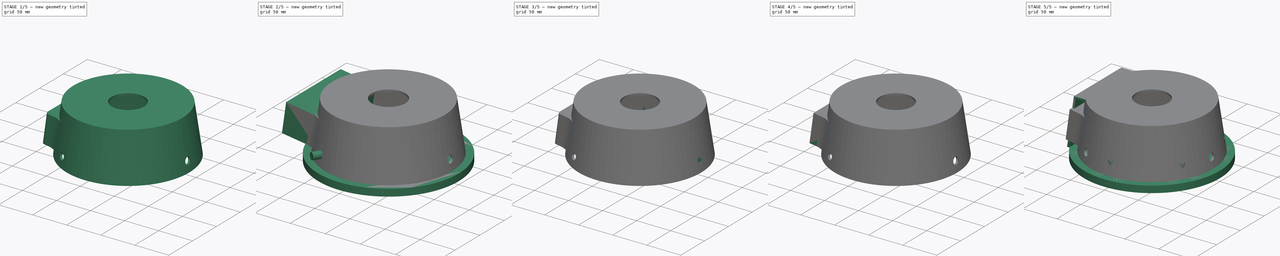
[diagram: build sequence overview — one tinted view per stage of 5, left to right]
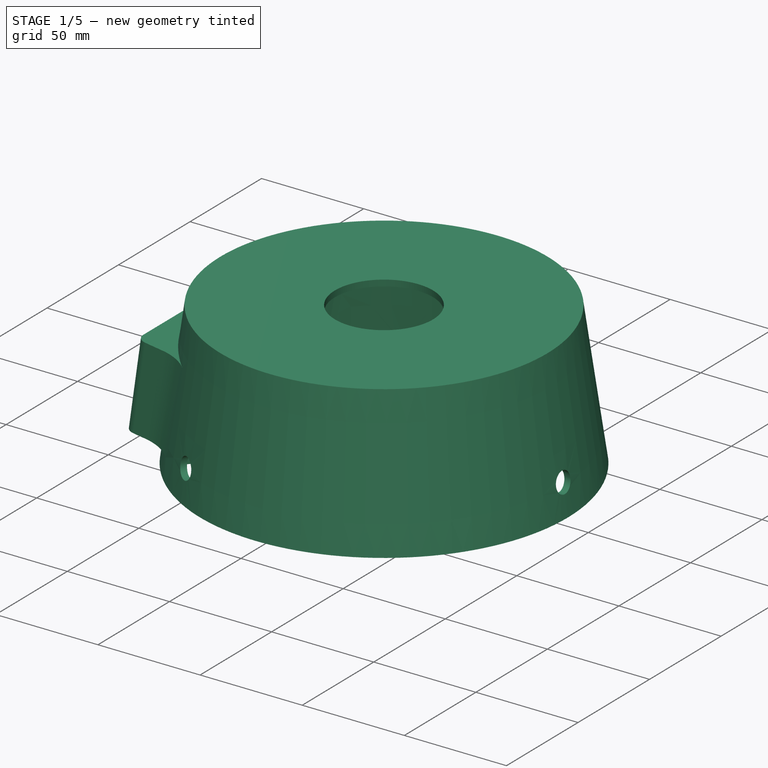
[diagram: stage 1 of 5 — iso view after this stage's code; geometry added in this stage tinted green]
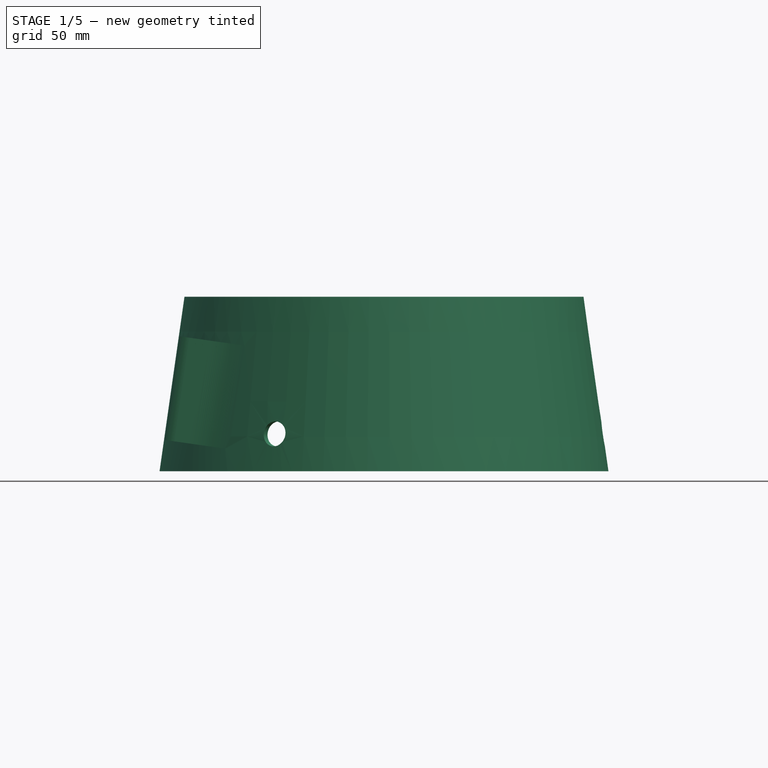
[diagram: stage 1 of 5 — front view after this stage's code; geometry added in this stage tinted green]
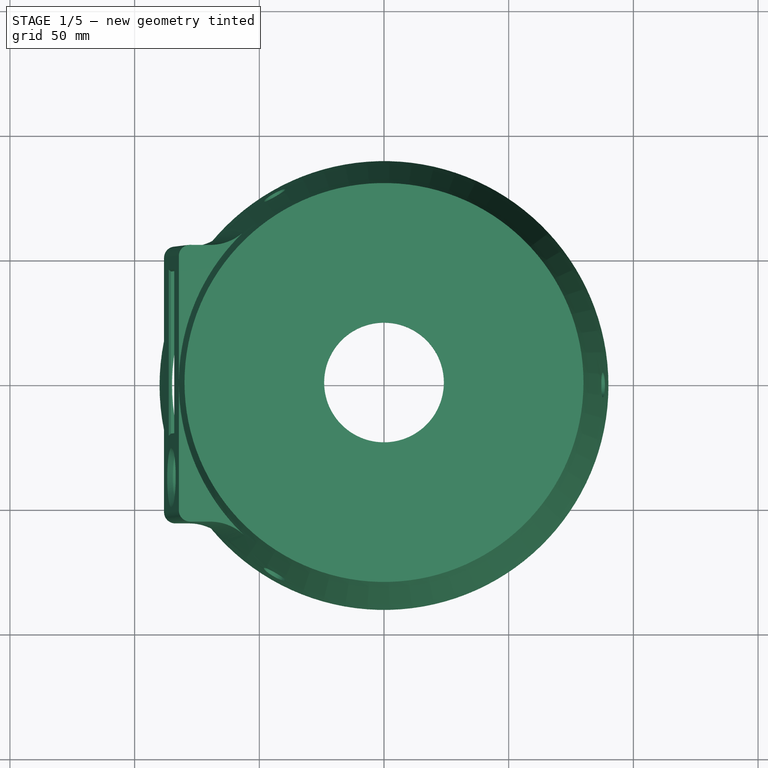
[diagram: stage 1 of 5 — top view after this stage's code; geometry added in this stage tinted green]
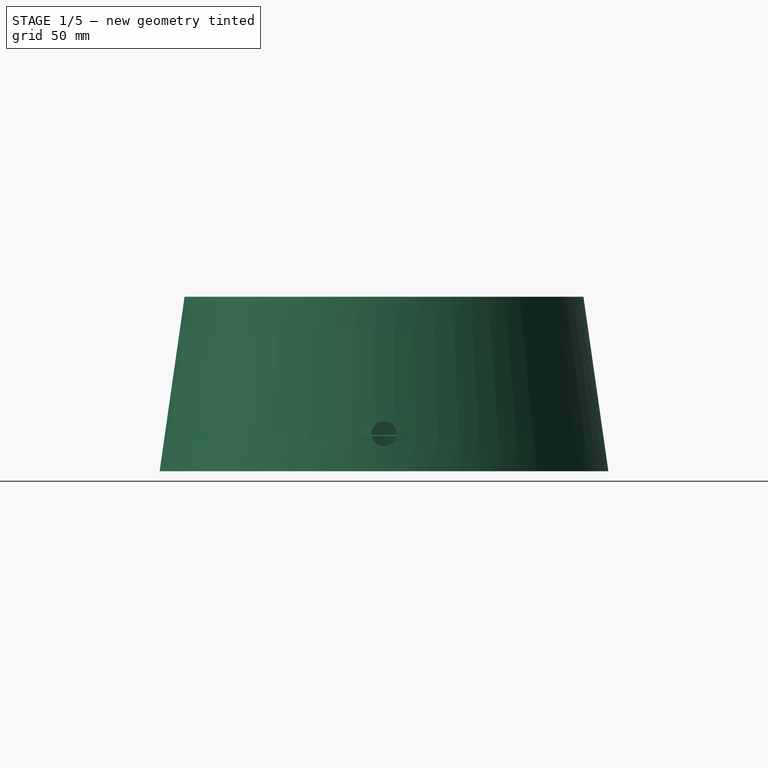
[diagram: stage 1 of 5 — right view after this stage's code; geometry added in this stage tinted green]
FCSTD DOCUMENT  (FreeCAD 0.16R6707 (Git))
Label: lid
License: All rights reserved
LicenseURL: http://en.wikipedia.org/wiki/All_rights_reserved
objects: Sketcher::SketchObject×19, PartDesign::Pad×11, PartDesign::Chamfer×8, PartDesign::Pocket×6, Part::Cut×5, PartDesign::Fillet×5, Part::Feature×4, PartDesign::Revolution×2, Part::MultiFuse×2
note: 81 computed .brp shape members not serialized (recipe doc carries the construction recipe); baked Part::Feature solids carry a one-line shape summary decoded from their .brp

FEATURE [Part::Feature] Fusion001_solid  label="Final_PreRefine (Solid)"
  shape: bbox 180 x 180 x 70 mm, 124 faces (baked)
FEATURE [Part::Feature] Fusion001_solid001  label="Final_Refined"
  shape: bbox 180 x 180 x 70 mm, 120 faces (baked)
FEATURE [PartDesign::Chamfer] Chamfer  label="Chamfer_Around_The_Display"
  Base = -> Fusion001_solid001 [Edge12,Edge1,Edge11,Edge13]
  Size = 0.8
FEATURE [PartDesign::Chamfer] Chamfer001  label="Chamfer_Around_The_Encoder_Well"
  Base = -> Chamfer [Edge40]
  Size = 2
FEATURE [PartDesign::Fillet] Fillet
  Base = -> Chamfer001 [Edge23,Edge31]
  Radius = 20
FEATURE [PartDesign::Fillet] Fillet001
  Base = -> Fillet [Edge3,Edge19]
  Radius = 4.5
FEATURE [PartDesign::Fillet] Fillet002
  Base = -> Fillet001 [Edge158,Edge151]
  Radius = 3
FEATURE [PartDesign::Fillet] Fillet003
  Base = -> Fillet002 [Edge158]
  Radius = 5
FEATURE [PartDesign::Fillet] Fillet004
  Base = -> Fillet003 [Edge24,Edge28,Edge36,Edge32,Edge33,Edge29,Edge25,Edge21,Edge17,Edge13,Edge16,Edge20]
  Radius = 4.5
FEATURE [PartDesign::Chamfer] Chamfer002
  Base = -> Fillet004 [Edge121,Edge123,Edge124,Edge143,Edge146,Edge147]
  Size = 1.4
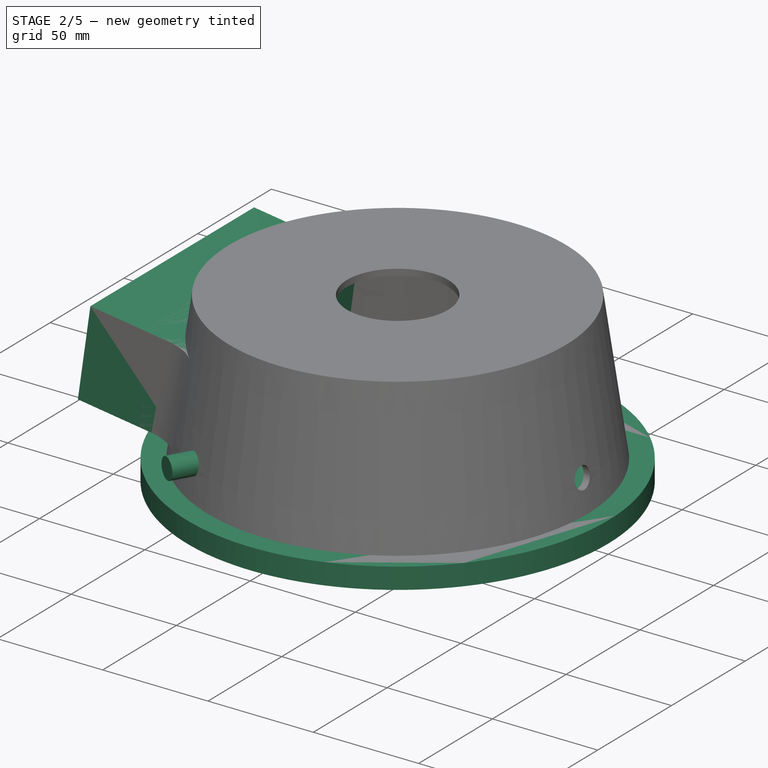
[diagram: stage 2 of 5 — iso view after this stage's code; geometry added in this stage tinted green]
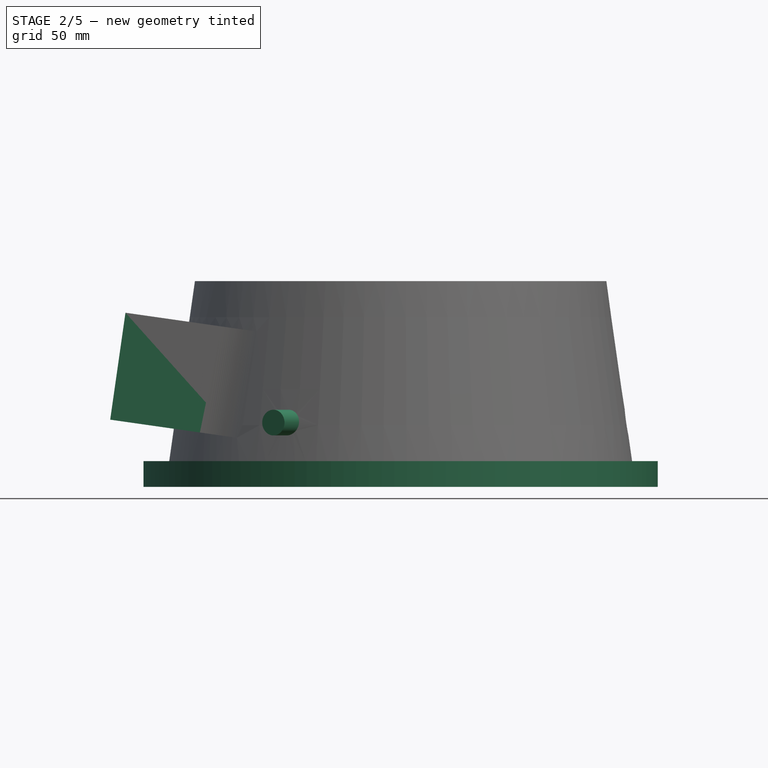
[diagram: stage 2 of 5 — front view after this stage's code; geometry added in this stage tinted green]
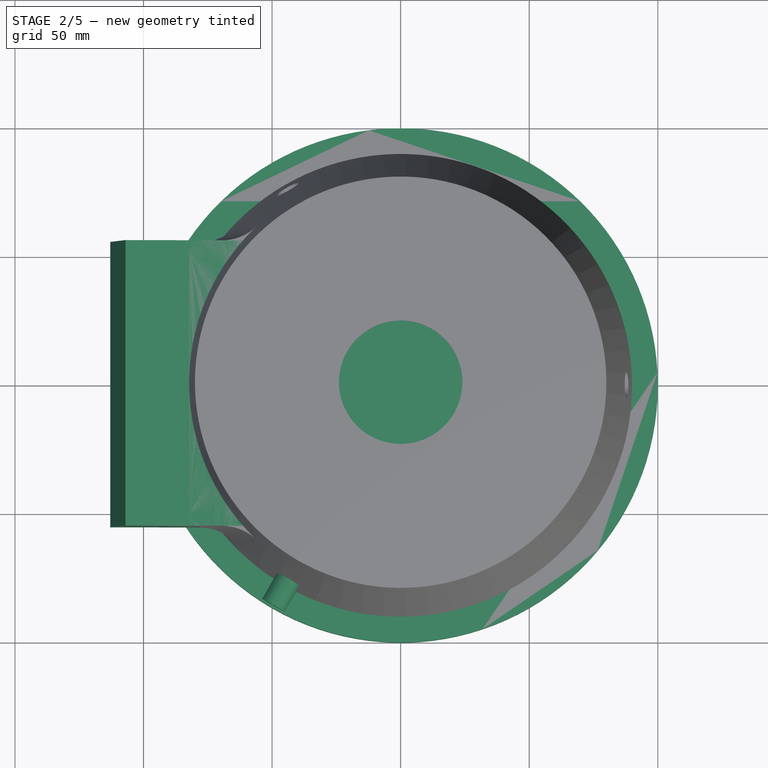
[diagram: stage 2 of 5 — top view after this stage's code; geometry added in this stage tinted green]
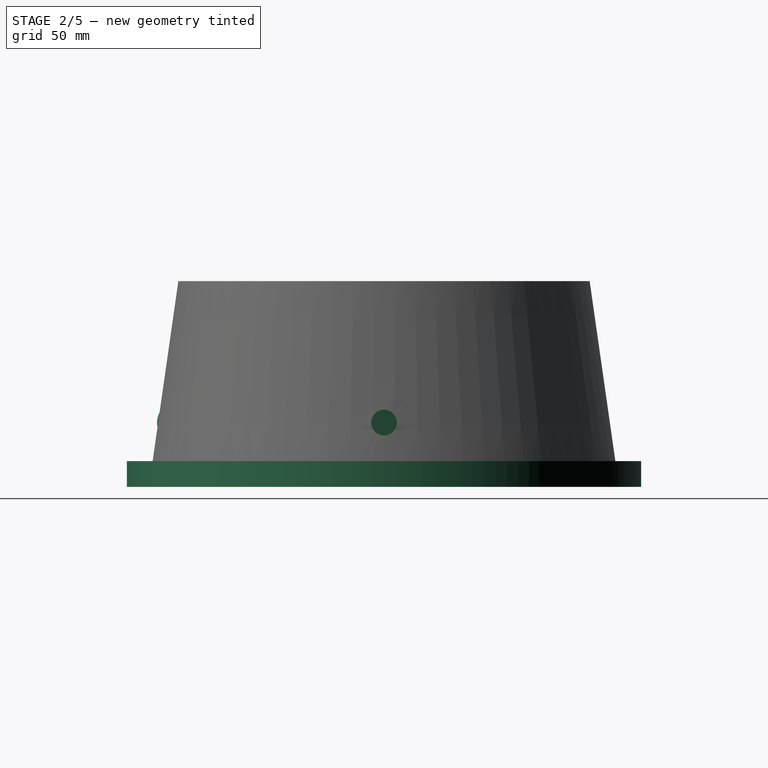
[diagram: stage 2 of 5 — right view after this stage's code; geometry added in this stage tinted green]
FEATURE [Sketcher::SketchObject] Sketch018  label="leg_base"
  sketch-geometry (1):
    g0: Circle CenterX=0 CenterY=0 CenterZ=0 NormalX=0 NormalY=0 NormalZ=1 Radius=100
  constraints (2):
    c: Coincident(g0,g-1)
    c: Radius(g0) = 100
FEATURE [PartDesign::Pad] Pad004
  Length = 10
  Length2 = 100
  Reversed = true
  Sketch = -> Sketch018
  Type = 0
FEATURE [Sketcher::SketchObject] Sketch020  label="Display_cutout"
  Placement = pos=(-88.2,0,12.6) rot=(-0.655202,0,0.755454;3.14159rad)
  sketch-geometry (6):
    g0: LineSegment StartX=-42 StartY=55.5 StartZ=0 EndX=0 EndY=55.5 EndZ=0
    g1: LineSegment StartX=0 StartY=55.5 StartZ=0 EndX=0 EndY=-55.5 EndZ=0
    g2: LineSegment StartX=0 StartY=-55.5 StartZ=0 EndX=-42 EndY=-55.5 EndZ=0
    g3: LineSegment StartX=-42 StartY=-55.5 StartZ=0 EndX=-42 EndY=55.5 EndZ=0
    g4: LineSegment [constr] StartX=-21 StartY=75 StartZ=0 EndX=-21 EndY=-75 EndZ=0
    g5: LineSegment [constr] StartX=-51 StartY=-12.75 StartZ=0 EndX=9 EndY=-12.75 EndZ=0
  constraints (18):
    c: Coincident(g0,g1)
    c: Coincident(g1,g2)
    c: Coincident(g2,g3)
    c: Coincident(g3,g0)
    c: Horizontal(g0)
    c: Horizontal(g2)
    c: Vertical(g1)
    c: Vertical(g3)
    c: Symmetric(g0,g2,g-1)
    c: DistanceY(g2,g0) = 111
    c: DistanceX(g2,g1) = 42
    c: PointOnObject(g0,g-2)
    c: DistanceX(g4,g1) = 21
    c: Symmetric(g4,g4,g-1)
    c: DistanceY(g4,g4) = 150
    c: Symmetric(g5,g5,g4)
    c: DistanceX(g5,g5) = 60
    c: DistanceY(g5,g-1) = 12.75
FEATURE [PartDesign::Pad] Pad006
  Length = 50
  Length2 = 100
  Midplane = true
  Placement = pos=(-88.2,0,12.6) rot=(-0.655202,0,0.755454;3.14159rad)
  Sketch = -> Sketch020
  Type = 0
FEATURE [Sketcher::SketchObject] Sketch023  label="power_plug_hole_left"
  Placement = pos=(-24.5,-42.4352,0) rot=(0.935113,-0.250563,-0.250563;1.63783rad)
  sketch-geometry (1):
    g0: Circle CenterX=0 CenterY=15 CenterZ=0 NormalX=0 NormalY=0 NormalZ=1 Radius=5
  constraints (3):
    c: PointOnObject(g0,g-2)
    c: DistanceY(g-1,g0) = 15
    c: Radius(g0) = 5
FEATURE [PartDesign::Pad] Pad008  label="Power_Plug_Hole_Left"
  Length = 50
  Length2 = 100
  Placement = pos=(-24.5,-42.4352,0) rot=(0.935113,-0.250563,-0.250563;1.63783rad)
  Sketch = -> Sketch023
  Type = 0
FEATURE [PartDesign::Chamfer] Chamfer003
  Base = -> Chamfer002 [Edge4,Edge6,Edge8,Edge20,Edge22,Edge24]
  Size = 2.5
FEATURE [PartDesign::Chamfer] Chamfer004
  Base = -> Chamfer003 [Edge134,Edge146,Edge144,Edge145,Edge155,Edge157,Edge158,Edge159]
  Size = 2
FEATURE [PartDesign::Chamfer] Chamfer005
  Base = -> Chamfer004 [Edge50,Edge48,Edge46,Edge8,Edge6,Edge4]
  Size = 1.5
FEATURE [PartDesign::Chamfer] Chamfer006
  Base = -> Chamfer005 [Edge424]
  Size = 3
FEATURE [PartDesign::Chamfer] Chamfer007
  Base = -> Chamfer006 [Edge10,Edge5]
  Size = 1.4
FEATURE [Part::Feature] Chamfer007_solid  label="Chamfer007 (Solid)"
  shape: bbox 183.3 x 180 x 73.68 mm, 177 faces (baked)
FEATURE [Part::Feature] Chamfer007_solid001  label="Final_Relined"
  shape: bbox 183.3 x 180 x 73.68 mm, 177 faces (baked)
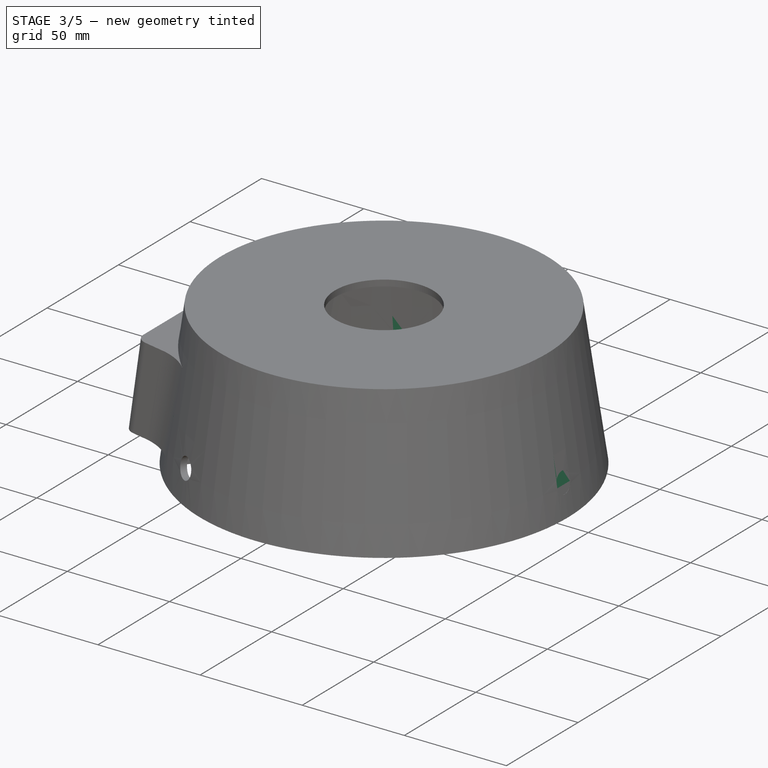
[diagram: stage 3 of 5 — iso view after this stage's code; geometry added in this stage tinted green]
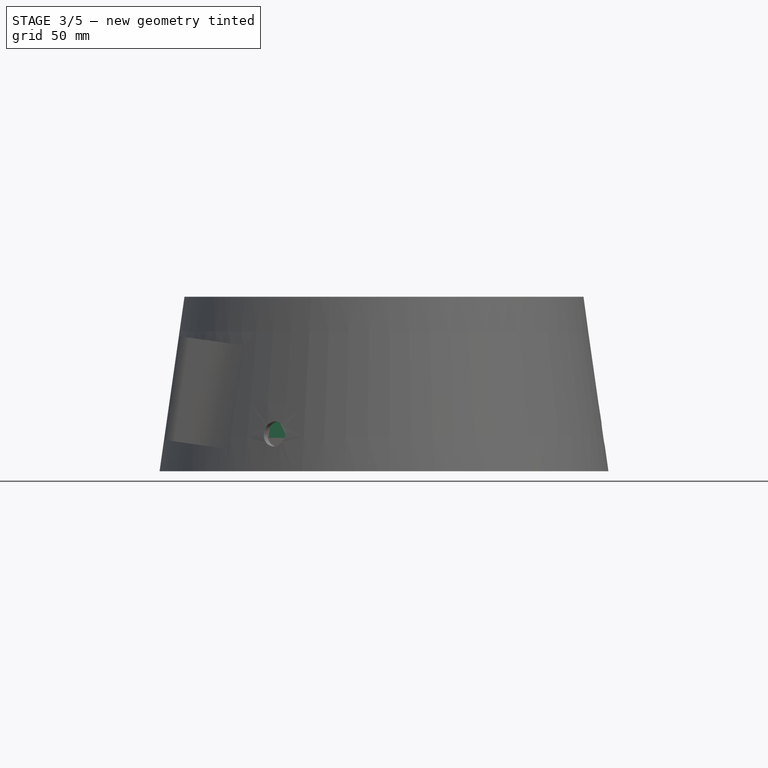
[diagram: stage 3 of 5 — front view after this stage's code; geometry added in this stage tinted green]
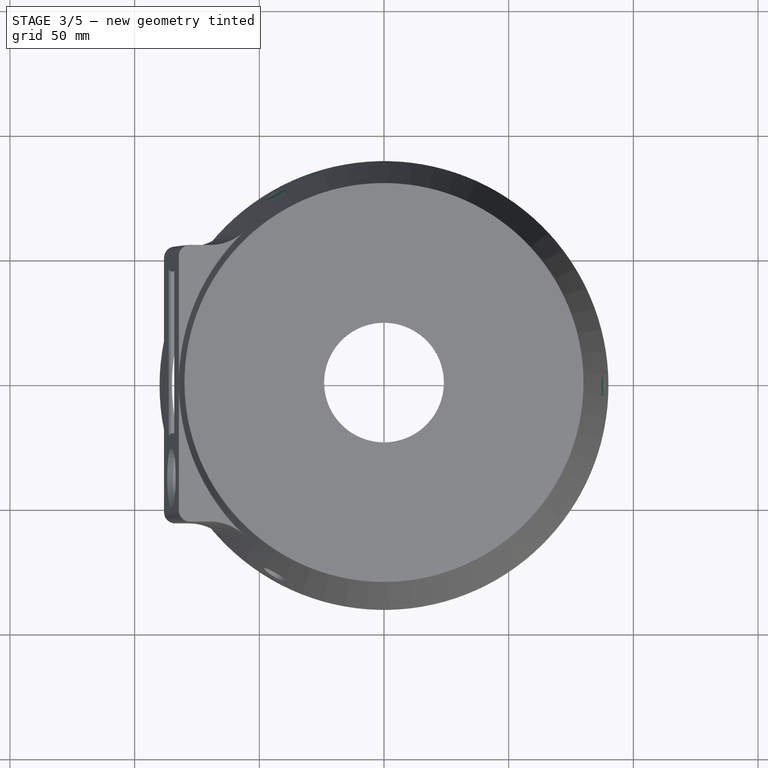
[diagram: stage 3 of 5 — top view after this stage's code; geometry added in this stage tinted green]
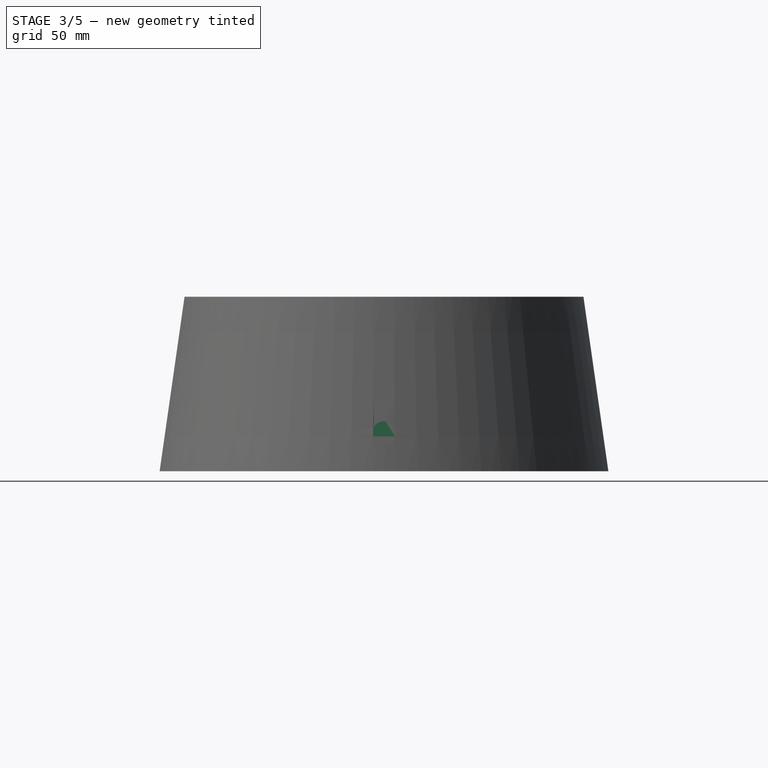
[diagram: stage 3 of 5 — right view after this stage's code; geometry added in this stage tinted green]
FEATURE [Sketcher::SketchObject] Sketch  label="Body"
  Placement = pos=(0,0,0) rot=(1,0,0;1.5708rad)
  sketch-geometry (7):
    g0: LineSegment StartX=-80 StartY=70 StartZ=0 EndX=-90 EndY=-9.176e-09 EndZ=0
    g1: LineSegment StartX=-90 StartY=-9.176e-09 StartZ=0 EndX=-87 EndY=9.588e-09 EndZ=0
    g2: LineSegment StartX=-87 StartY=9.588e-09 StartZ=0 EndX=-77.4286 EndY=67 EndZ=0
    g3: LineSegment StartX=-77.4286 StartY=67 StartZ=0 EndX=-24 EndY=67 EndZ=0
    g4: LineSegment StartX=-24 StartY=67 StartZ=0 EndX=-24 EndY=70 EndZ=0
    g5: LineSegment StartX=-80 StartY=70 StartZ=0 EndX=-80 EndY=70 EndZ=0
    g6: LineSegment StartX=-80 StartY=70 StartZ=0 EndX=-24 EndY=70 EndZ=0
  constraints (21):
    c: PointOnObject(g0,g-1)
    c: Coincident(g0,g1)
    c: PointOnObject(g1,g-1)
    c: Coincident(g1,g2)
    c: Coincident(g2,g3)
    c: Horizontal(g3)
    c: Coincident(g3,g4)
    c: DistanceX(g0,g-1) = 90
    c: DistanceX(g0,g-1) = 80
    c: DistanceX(g0,g1) = 3
    c: Parallel(g0,g2)
    c: DistanceY(g2,g0) = 3
    c: Vertical(g4)
    c: DistanceX(g3,g-1) = 24
    c: Vertical(g5)
    c: Coincident(g5,g6)
    c: Horizontal(g6)
    c: Coincident(g6,g4)
    c: Equal(g1,g4)
    c: DistanceY(g-1,g4) = 70
    c: Coincident(g5,g0)
FEATURE [PartDesign::Revolution] Revolution
  Angle = 360
  Axis = (0,0,1)
  Base = (0,0,0)
  Placement = pos=(0,0,0) rot=(1,0,0;1.5708rad)
  ReferenceAxis = -> Sketch [V_Axis]
  Sketch = -> Sketch
FEATURE [Sketcher::SketchObject] Sketch015  label="Screws"
  Support = -> Pad004 [Face2]
  sketch-geometry (19):
    g0: LineSegment [constr] StartX=69.282 StartY=-40 StartZ=0 EndX=69.282 EndY=40 EndZ=0
    g1: LineSegment [constr] StartX=69.282 StartY=40 StartZ=0 EndX=0 EndY=80 EndZ=0
    g2: LineSegment [constr] StartX=0 StartY=80 StartZ=0 EndX=-69.282 EndY=40 EndZ=0
    g3: LineSegment [constr] StartX=-69.282 StartY=40 StartZ=0 EndX=-69.282 EndY=-40 EndZ=0
    g4: LineSegment [constr] StartX=-69.282 StartY=-40 StartZ=0 EndX=0 EndY=-80 EndZ=0
    g5: LineSegment [constr] StartX=0 StartY=-80 StartZ=0 EndX=69.282 EndY=-40 EndZ=0
    g6: Circle [constr] CenterX=0 CenterY=0 CenterZ=0 NormalX=0 NormalY=0 NormalZ=1 Radius=80
    g7: Circle CenterX=-69.282 CenterY=40 CenterZ=0 NormalX=0 NormalY=0 NormalZ=1 Radius=1.6
    g8: Circle CenterX=-69.282 CenterY=40 CenterZ=0 NormalX=0 NormalY=0 NormalZ=1 Radius=8
    g9: Circle CenterX=0 CenterY=80 CenterZ=0 NormalX=0 NormalY=0 NormalZ=1 Radius=1.6
    g10: Circle CenterX=0 CenterY=80 CenterZ=0 NormalX=0 NormalY=0 NormalZ=1 Radius=8
    g11: Circle CenterX=69.282 CenterY=40 CenterZ=0 NormalX=0 NormalY=0 NormalZ=1 Radius=1.6
    g12: Circle CenterX=69.282 CenterY=40 CenterZ=0 NormalX=0 NormalY=0 NormalZ=1 Radius=8
    g13: Circle CenterX=69.282 CenterY=-40 CenterZ=0 NormalX=0 NormalY=0 NormalZ=1 Radius=1.6
    g14: Circle CenterX=69.282 CenterY=-40 CenterZ=0 NormalX=0 NormalY=0 NormalZ=1 Radius=8
    g15: Circle CenterX=0 CenterY=-80 CenterZ=0 NormalX=0 NormalY=0 NormalZ=1 Radius=1.6
    g16: Circle CenterX=0 CenterY=-80 CenterZ=0 NormalX=0 NormalY=0 NormalZ=1 Radius=8
    g17: Circle CenterX=-69.282 CenterY=-40 CenterZ=0 NormalX=0 NormalY=0 NormalZ=1 Radius=1.6
    g18: Circle CenterX=-69.282 CenterY=-40 CenterZ=0 NormalX=0 NormalY=0 NormalZ=1 Radius=8
  constraints (41):
    c: Coincident(g0,g1)
    c: Coincident(g1,g2)
    c: Coincident(g2,g3)
    c: Coincident(g3,g4)
    c: Coincident(g4,g5)
    c: Coincident(g5,g0)
    c: Equal(g0, g1-g5) x5
    c: PointOnObject(g0,g6)
    c: PointOnObject(g1,g6)
    c: PointOnObject(g2,g6)
    c: PointOnObject(g3,g6)
    c: PointOnObject(g4,g6)
    c: PointOnObject(g5,g6)
    c: PointOnObject(g6,g-1)
    c: Coincident(g6,g-1)
    c: PointOnObject(g1,g-2)
    c: Radius(g6) = 80
    c: Coincident(g7,g2)
    c: Coincident(g8,g2)
    c: Coincident(g9,g1)
    c: Coincident(g10,g1)
    c: Coincident(g11,g0)
    c: Coincident(g12,g0)
    c: Coincident(g13,g0)
    c: Coincident(g14,g0)
    c: Coincident(g15,g4)
    c: Coincident(g16,g4)
    c: Coincident(g17,g3)
    c: Coincident(g18,g3)
    c: Radius(g7) = 1.6
    c: Radius(g8) = 8
    c: Equal(g8,g10)
    c: Equal(g10,g12)
    c: Equal(g12,g14)
    c: Equal(g14,g16)
    c: Equal(g16,g18)
    c: Equal(g7,g9)
    c: Equal(g9,g11)
    c: Equal(g11,g13)
    c: Equal(g13,g15)
    c: Equal(g15,g17)
FEATURE [PartDesign::Pad] Pad005
  Length = 8
  Length2 = 100
  Sketch = -> Sketch015
  Type = 0
FEATURE [Sketcher::SketchObject] Sketch016  label="Nuts"
  Placement = pos=(0,0,8) rot=(0,0,1;0rad)
  Support = -> Pad005 [Face15]
  sketch-geometry (49):
    g0: LineSegment [constr] StartX=69.282 StartY=-40 StartZ=0 EndX=69.282 EndY=40 EndZ=0
    g1: LineSegment [constr] StartX=69.282 StartY=40 StartZ=0 EndX=0 EndY=80 EndZ=0
    g2: LineSegment [constr] StartX=0 StartY=80 StartZ=0 EndX=-69.282 EndY=40 EndZ=0
    g3: LineSegment [constr] StartX=-69.282 StartY=40 StartZ=0 EndX=-69.282 EndY=-40 EndZ=0
    g4: LineSegment [constr] StartX=-69.282 StartY=-40 StartZ=0 EndX=0 EndY=-80 EndZ=0
    g5: LineSegment [constr] StartX=0 StartY=-80 StartZ=0 EndX=69.282 EndY=-40 EndZ=0
    g6: Circle [constr] CenterX=0 CenterY=0 CenterZ=0 NormalX=0 NormalY=0 NormalZ=1 Radius=80
    g7: LineSegment StartX=0 StartY=83 StartZ=0 EndX=-2.59808 EndY=81.5 EndZ=0
    g8: LineSegment StartX=-2.59808 StartY=81.5 StartZ=0 EndX=-2.59808 EndY=78.5 EndZ=0
    g9: LineSegment StartX=-2.59808 StartY=78.5 StartZ=0 EndX=0 EndY=77 EndZ=0
    g10: LineSegment StartX=0 StartY=77 StartZ=0 EndX=2.59808 EndY=78.5 EndZ=0
    g11: LineSegment StartX=2.59808 StartY=78.5 StartZ=0 EndX=2.59808 EndY=81.5 EndZ=0
    g12: LineSegment StartX=2.59808 StartY=81.5 StartZ=0 EndX=0 EndY=83 EndZ=0
    g13: Circle [constr] CenterX=0 CenterY=80 CenterZ=0 NormalX=0 NormalY=0 NormalZ=1 Radius=3
    g14: LineSegment StartX=70.8305 StartY=42.5695 StartZ=0 EndX=67.831 EndY=42.6257 EndZ=0
    g15: LineSegment StartX=67.831 StartY=42.6257 StartZ=0 EndX=66.2826 EndY=40.0562 EndZ=0
    g16: LineSegment StartX=66.2826 StartY=40.0562 StartZ=0 EndX=67.7336 EndY=37.4305 EndZ=0
    g17: LineSegment StartX=67.7336 StartY=37.4305 StartZ=0 EndX=70.7331 EndY=37.3743 EndZ=0
    g18: LineSegment StartX=70.7331 StartY=37.3743 StartZ=0 EndX=72.2815 EndY=39.9438 EndZ=0
    g19: LineSegment StartX=72.2815 StartY=39.9438 StartZ=0 EndX=70.8305 EndY=42.5695 EndZ=0
    g20: Circle [constr] CenterX=69.282 CenterY=40 CenterZ=0 NormalX=0 NormalY=0 NormalZ=1 Radius=3
    g21: LineSegment StartX=72.2815 StartY=-40.0562 StartZ=0 EndX=70.8305 EndY=-37.4305 EndZ=0
    g22: LineSegment StartX=70.8305 StartY=-37.4305 StartZ=0 EndX=67.831 EndY=-37.3743 EndZ=0
    g23: LineSegment StartX=67.831 StartY=-37.3743 StartZ=0 EndX=66.2826 EndY=-39.9438 EndZ=0
    g24: LineSegment StartX=66.2826 StartY=-39.9438 StartZ=0 EndX=67.7336 EndY=-42.5695 EndZ=0
    g25: LineSegment StartX=67.7336 StartY=-42.5695 StartZ=0 EndX=70.7331 EndY=-42.6257 EndZ=0
    g26: LineSegment StartX=70.7331 StartY=-42.6257 StartZ=0 EndX=72.2815 EndY=-40.0562 EndZ=0
    g27: Circle [constr] CenterX=69.282 CenterY=-40 CenterZ=0 NormalX=0 NormalY=0 NormalZ=1 Radius=3
    g28: LineSegment StartX=0 StartY=-77 StartZ=0 EndX=-2.59808 EndY=-78.5 EndZ=0
    g29: LineSegment StartX=-2.59808 StartY=-78.5 StartZ=0 EndX=-2.59808 EndY=-81.5 EndZ=0
    g30: LineSegment StartX=-2.59808 StartY=-81.5 StartZ=0 EndX=0 EndY=-83 EndZ=0
    g31: LineSegment StartX=0 StartY=-83 StartZ=0 EndX=2.59808 EndY=-81.5 EndZ=0
    g32: LineSegment StartX=2.59808 StartY=-81.5 StartZ=0 EndX=2.59808 EndY=-78.5 EndZ=0
    g33: LineSegment StartX=2.59808 StartY=-78.5 StartZ=0 EndX=0 EndY=-77 EndZ=0
    g34: Circle [constr] CenterX=0 CenterY=-80 CenterZ=0 NormalX=0 NormalY=0 NormalZ=1 Radius=3
    g35: LineSegment StartX=-69.282 StartY=-37 StartZ=0 EndX=-71.8801 EndY=-38.5 EndZ=0
    g36: LineSegment StartX=-71.8801 StartY=-38.5 StartZ=0 EndX=-71.8801 EndY=-41.5 EndZ=0
    g37: LineSegment StartX=-71.8801 StartY=-41.5 StartZ=0 EndX=-69.282 EndY=-43 EndZ=0
    g38: LineSegment StartX=-69.282 StartY=-43 StartZ=0 EndX=-66.684 EndY=-41.5 EndZ=0
    g39: LineSegment StartX=-66.684 StartY=-41.5 StartZ=0 EndX=-66.684 EndY=-38.5 EndZ=0
    g40: LineSegment StartX=-66.684 StartY=-38.5 StartZ=0 EndX=-69.282 EndY=-37 EndZ=0
    g41: Circle [constr] CenterX=-69.282 CenterY=-40 CenterZ=0 NormalX=0 NormalY=0 NormalZ=1 Radius=3
    g42: LineSegment StartX=-69.282 StartY=43 StartZ=0 EndX=-71.8801 EndY=41.5 EndZ=0
    g43: LineSegment StartX=-71.8801 StartY=41.5 StartZ=0 EndX=-71.8801 EndY=38.5 EndZ=0
    g44: LineSegment StartX=-71.8801 StartY=38.5 StartZ=0 EndX=-69.282 EndY=37 EndZ=0
    g45: LineSegment StartX=-69.282 StartY=37 StartZ=0 EndX=-66.684 EndY=38.5 EndZ=0
    g46: LineSegment StartX=-66.684 StartY=38.5 StartZ=0 EndX=-66.684 EndY=41.5 EndZ=0
    g47: LineSegment StartX=-66.684 StartY=41.5 StartZ=0 EndX=-69.282 EndY=43 EndZ=0
    g48: Circle [constr] CenterX=-69.282 CenterY=40 CenterZ=0 NormalX=0 NormalY=0 NormalZ=1 Radius=3
  constraints (113):
    c: Coincident(g0,g1)
    c: Coincident(g1,g2)
    c: Coincident(g2,g3)
    c: Coincident(g3,g4)
    c: Coincident(g4,g5)
    c: Coincident(g5,g0)
    c: Equal(g0, g1-g5) x5
    c: PointOnObject(g0,g6)
    c: PointOnObject(g1,g6)
    c: PointOnObject(g2,g6)
    c: PointOnObject(g3,g6)
    c: PointOnObject(g4,g6)
    c: PointOnObject(g5,g6)
    c: PointOnObject(g6,g-1)
    c: Coincident(g6,g-1)
    c: PointOnObject(g1,g-2)
    c: Radius(g6) = 80
    c: Coincident(g7,g8)
    c: Coincident(g8,g9)
    c: Coincident(g9,g10)
    c: Coincident(g10,g11)
    c: Coincident(g11,g12)
    c: Coincident(g12,g7)
    c: Equal(g7, g8-g12) x5
    c: PointOnObject(g7,g13)
    c: PointOnObject(g8,g13)
    c: PointOnObject(g9,g13)
    c: PointOnObject(g10,g13)
    c: PointOnObject(g11,g13)
    c: PointOnObject(g12,g13)
    c: Coincident(g13,g1)
    c: Coincident(g14,g15)
    c: Coincident(g15,g16)
    c: Coincident(g16,g17)
    c: Coincident(g17,g18)
    c: Coincident(g18,g19)
    c: Coincident(g19,g14)
    c: Equal(g14, g15-g19) x5
    c: PointOnObject(g14,g20)
    c: PointOnObject(g15,g20)
    c: PointOnObject(g16,g20)
    c: PointOnObject(g17,g20)
    c: PointOnObject(g18,g20)
    c: PointOnObject(g19,g20)
    c: Coincident(g20,g0)
    c: Coincident(g21,g22)
    c: Coincident(g22,g23)
    c: Coincident(g23,g24)
    c: Coincident(g24,g25)
    c: Coincident(g25,g26)
    c: Coincident(g26,g21)
    c: Equal(g21, g22-g26) x5
    c: PointOnObject(g21,g27)
    c: PointOnObject(g22,g27)
    c: PointOnObject(g23,g27)
    c: PointOnObject(g24,g27)
    c: PointOnObject(g25,g27)
    c: PointOnObject(g26,g27)
    c: Coincident(g27,g0)
    c: Coincident(g28,g29)
    c: Coincident(g29,g30)
    c: Coincident(g30,g31)
    c: Coincident(g31,g32)
    c: Coincident(g32,g33)
    c: Coincident(g33,g28)
    c: Equal(g28, g29-g33) x5
    c: PointOnObject(g28,g34)
    c: PointOnObject(g29,g34)
    c: PointOnObject(g30,g34)
    c: PointOnObject(g31,g34)
    c: PointOnObject(g32,g34)
    c: PointOnObject(g33,g34)
    c: Coincident(g34,g4)
    c: Coincident(g35,g36)
    c: Coincident(g36,g37)
    c: Coincident(g37,g38)
    c: Coincident(g38,g39)
    c: Coincident(g39,g40)
    c: Coincident(g40,g35)
    c: Equal(g35, g36-g40) x5
    c: PointOnObject(g35,g41)
    c: PointOnObject(g36,g41)
    c: PointOnObject(g37,g41)
    c: PointOnObject(g38,g41)
    c: PointOnObject(g39,g41)
    c: PointOnObject(g40,g41)
    c: Coincident(g41,g3)
    c: Coincident(g42,g43)
    c: Coincident(g43,g44)
    c: Coincident(g44,g45)
    c: Coincident(g45,g46)
    c: Coincident(g46,g47)
    c: Coincident(g47,g42)
    c: Equal(g42, g43-g47) x5
    c: PointOnObject(g42,g48)
    c: PointOnObject(g43,g48)
    c: PointOnObject(g44,g48)
    c: PointOnObject(g45,g48)
    c: PointOnObject(g46,g48)
    c: PointOnObject(g47,g48)
    c: Coincident(g48,g2)
    c: Radius(g13) = 3
    c: Equal(g13,g20)
    c: Equal(g20,g48)
    c: Equal(g48,g41)
    c: Equal(g41,g34)
    c: Equal(g34,g27)
    c: PointOnObject(g46,g2)
    c: PointOnObject(g10,g1)
    c: PointOnObject(g17,g6)
    c: PointOnObject(g24,g6)
    c: PointOnObject(g28,g4)
    c: PointOnObject(g35,g3)
FEATURE [PartDesign::Pocket] Pocket004
  Length = 3
  Sketch = -> Sketch016
  Type = 0
FEATURE [Part::MultiFuse] Fusion
  Shapes = -> [Revolution,Pocket004]
FEATURE [Sketcher::SketchObject] Sketch019  label="Legs_cutout"
  Placement = pos=(0,0,-10) rot=(1,0,0;3.14159rad)
  Support = -> Fusion [Face8]
  sketch-geometry (1):
    g0: Circle CenterX=0 CenterY=0 CenterZ=0 NormalX=0 NormalY=0 NormalZ=1 Radius=102
  constraints (2):
    c: Coincident(g0,g-1)
    c: Radius(g0) = 102
FEATURE [PartDesign::Pocket] Pocket005
  Length = 10
  Sketch = -> Sketch019
  Type = 0
FEATURE [Part::Cut] Cut  label="Main_Body"
  Base = -> Pocket005
  Tool = -> Pad006
FEATURE [Part::Cut] Cut002
  Base = -> Cut
  Tool = -> Pad008
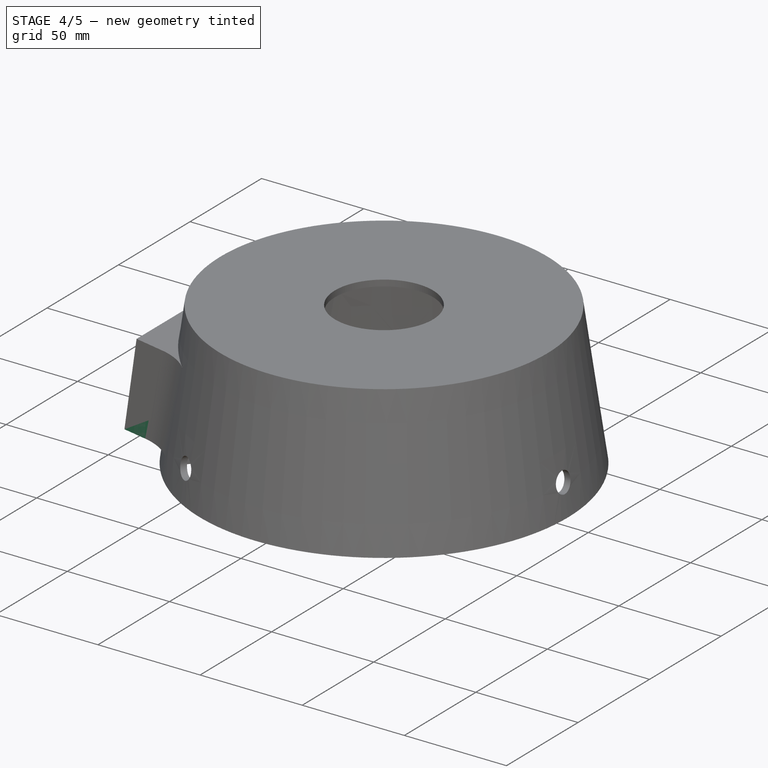
[diagram: stage 4 of 5 — iso view after this stage's code; geometry added in this stage tinted green]
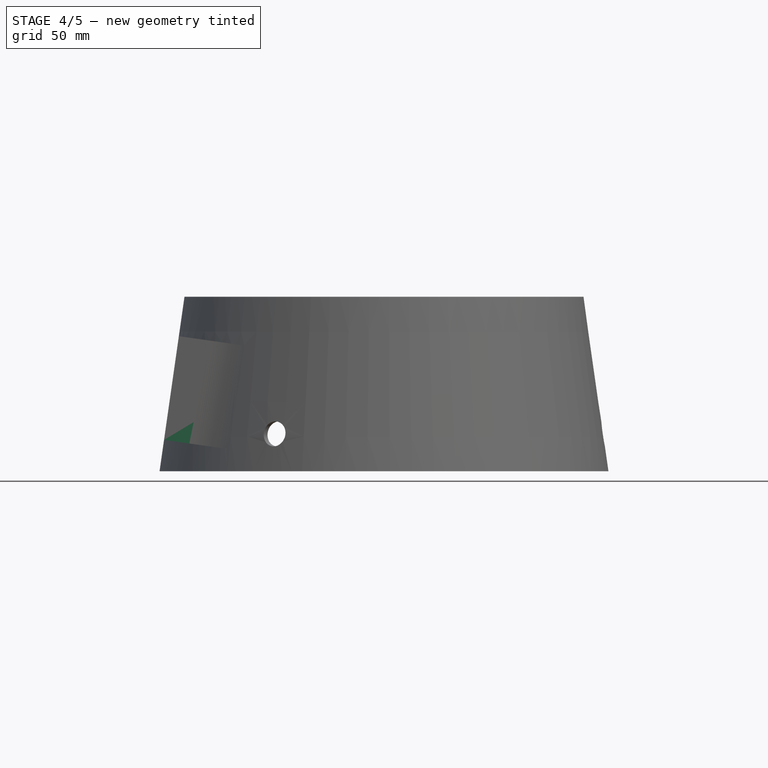
[diagram: stage 4 of 5 — front view after this stage's code; geometry added in this stage tinted green]
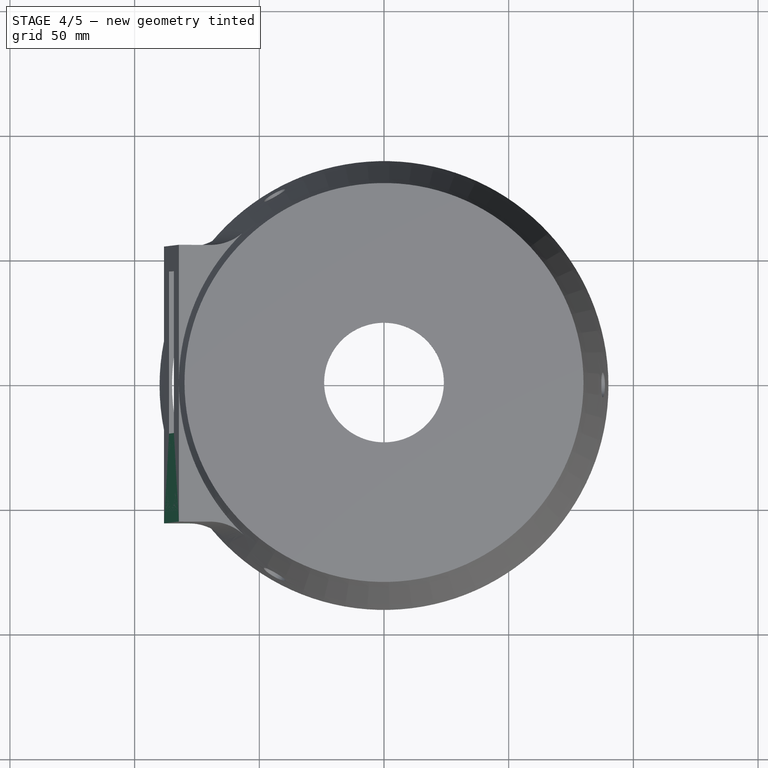
[diagram: stage 4 of 5 — top view after this stage's code; geometry added in this stage tinted green]
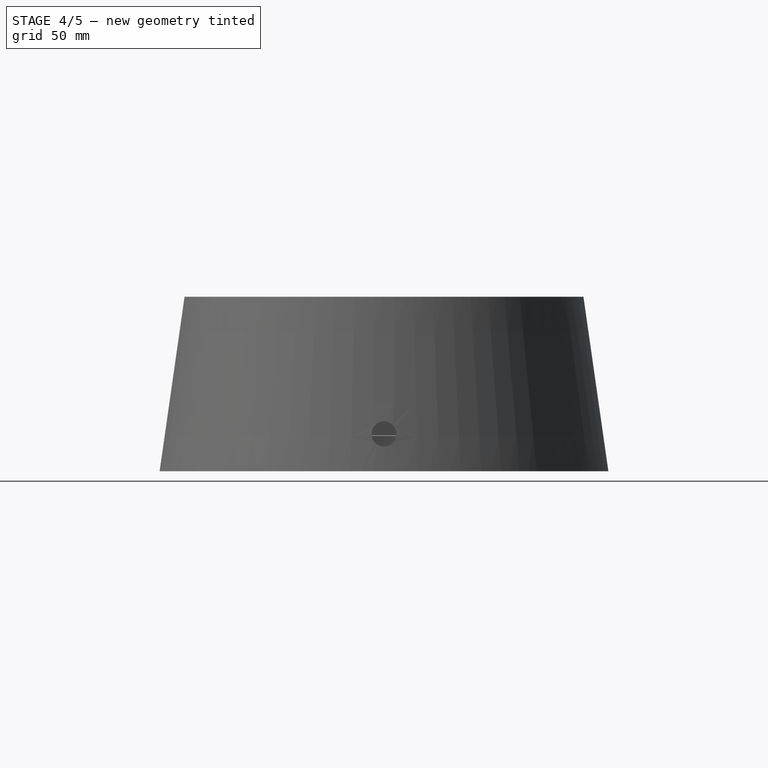
[diagram: stage 4 of 5 — right view after this stage's code; geometry added in this stage tinted green]
FEATURE [Sketcher::SketchObject] Sketch008  label="Display_base"
  Placement = pos=(-88.2,0,12.6) rot=(-0.655202,0,0.755454;3.14159rad)
  sketch-geometry (10):
    g0: LineSegment StartX=-42 StartY=55.5 StartZ=0 EndX=0 EndY=55.5 EndZ=0
    g1: LineSegment StartX=0 StartY=55.5 StartZ=0 EndX=0 EndY=-55.5 EndZ=0
    g2: LineSegment StartX=0 StartY=-55.5 StartZ=0 EndX=-42 EndY=-55.5 EndZ=0
    g3: LineSegment StartX=-42 StartY=-55.5 StartZ=0 EndX=-42 EndY=55.5 EndZ=0
    g4: LineSegment [constr] StartX=-21 StartY=75 StartZ=0 EndX=-21 EndY=-75 EndZ=0
    g5: LineSegment StartX=-28 StartY=19.75 StartZ=0 EndX=-14 EndY=19.75 EndZ=0
    g6: LineSegment StartX=-14 StartY=19.75 StartZ=0 EndX=-14 EndY=-45.25 EndZ=0
    g7: LineSegment StartX=-14 StartY=-45.25 StartZ=0 EndX=-28 EndY=-45.25 EndZ=0
    g8: LineSegment StartX=-28 StartY=-45.25 StartZ=0 EndX=-28 EndY=19.75 EndZ=0
    g9: LineSegment [constr] StartX=-51 StartY=-12.75 StartZ=0 EndX=9 EndY=-12.75 EndZ=0
  constraints (30):
    c: Coincident(g0,g1)
    c: Coincident(g1,g2)
    c: Coincident(g2,g3)
    c: Coincident(g3,g0)
    c: Horizontal(g0)
    c: Horizontal(g2)
    c: Vertical(g1)
    c: Vertical(g3)
    c: Symmetric(g0,g2,g-1)
    c: DistanceY(g2,g0) = 111
    c: DistanceX(g2,g1) = 42
    c: PointOnObject(g0,g-2)
    c: DistanceX(g4,g1) = 21
    c: Symmetric(g4,g4,g-1)
    c: DistanceY(g4,g4) = 150
    c: Coincident(g5,g6)
    c: Coincident(g6,g7)
    c: Coincident(g7,g8)
    c: Coincident(g8,g5)
    c: Horizontal(g5)
    c: Horizontal(g7)
    c: Vertical(g6)
    c: Vertical(g8)
    c: Symmetric(g5,g5,g4)
    c: DistanceX(g5,g5) = 14
    c: DistanceY(g6,g5) = 65
    c: Symmetric(g5,g6,g9)
    c: Symmetric(g9,g9,g4)
    c: DistanceX(g9,g9) = 60
    c: DistanceY(g9,g-1) = 12.75
FEATURE [PartDesign::Pad] Pad001
  Length = 25
  Length2 = 100
  Placement = pos=(-88.2,0,12.6) rot=(-0.655202,0,0.755454;3.14159rad)
  Reversed = true
  Sketch = -> Sketch008
  Type = 0
FEATURE [Sketcher::SketchObject] Sketch009  label="hollow"
  Placement = pos=(-63.4513,0,9.06447) rot=(0,1,0;1.71269rad)
  Support = -> Pad001 [Face10]
  sketch-geometry (5):
    g0: LineSegment [constr] StartX=-21 StartY=75 StartZ=0 EndX=-21 EndY=-75 EndZ=0
    g1: LineSegment StartX=-40 StartY=53.5 StartZ=0 EndX=-2 EndY=53.5 EndZ=0
    g2: LineSegment StartX=-2 StartY=53.5 StartZ=0 EndX=-2 EndY=-53.5 EndZ=0
    g3: LineSegment StartX=-2 StartY=-53.5 StartZ=0 EndX=-40 EndY=-53.5 EndZ=0
    g4: LineSegment StartX=-40 StartY=-53.5 StartZ=0 EndX=-40 EndY=53.5 EndZ=0
  constraints (15):
    c: Symmetric(g0,g0,g-1)
    c: DistanceY(g0,g0) = 150
    c: Coincident(g1,g2)
    c: Coincident(g2,g3)
    c: Coincident(g3,g4)
    c: Coincident(g4,g1)
    c: Horizontal(g1)
    c: Horizontal(g3)
    c: Vertical(g2)
    c: Vertical(g4)
    c: DistanceY(g4,g4) = 107
    c: DistanceX(g1,g1) = 38
    c: Symmetric(g3,g2,g0)
    c: DistanceX(g2,g-1) = 2
    c: DistanceY(g3,g-1) = 53.5
FEATURE [PartDesign::Pocket] Pocket
  Length = 24
  Placement = pos=(-88.2,0,12.6) rot=(-0.655202,0,0.755454;3.14159rad)
  Sketch = -> Sketch009
  Type = 0
FEATURE [Sketcher::SketchObject] Sketch024  label="Display_round_cutout"
  Placement = pos=(0,0,0) rot=(1,0,0;1.5708rad)
  sketch-geometry (4):
    g0: LineSegment StartX=-87 StartY=0 StartZ=0 EndX=-77.4317 EndY=67.0048 EndZ=0
    g1: LineSegment StartX=-77.4317 StartY=67.0048 StartZ=0 EndX=-57.0291 EndY=67.0048 EndZ=0
    g2: LineSegment StartX=-57.0291 StartY=67.0048 StartZ=0 EndX=-57.0291 EndY=0 EndZ=0
    g3: LineSegment StartX=-57.0291 StartY=0 StartZ=0 EndX=-87 EndY=0 EndZ=0
  constraints (8):
    c: PointOnObject(g0,g-1)
    c: Coincident(g1,g0)
    c: Horizontal(g1)
    c: Coincident(g2,g1)
    c: Vertical(g2)
    c: Coincident(g3,g2)
    c: Coincident(g3,g0)
    c: Horizontal(g3)
FEATURE [PartDesign::Revolution] Revolution001
  Angle = 360
  Axis = (0,0,1)
  Base = (0,0,0)
  Placement = pos=(0,0,0) rot=(1,0,0;1.5708rad)
  ReferenceAxis = -> Sketch024 [V_Axis]
  Sketch = -> Sketch024
FEATURE [Part::Cut] Cut001  label="Display_Round_cutout"
  Base = -> Pocket
  Tool = -> Revolution001
FEATURE [Sketcher::SketchObject] Sketch030  label="power_plug_hole_back"
  Placement = pos=(49,0,0) rot=(0.57735,0.57735,0.57735;2.0944rad)
  sketch-geometry (1):
    g0: Circle CenterX=0 CenterY=15 CenterZ=0 NormalX=0 NormalY=0 NormalZ=1 Radius=5
  constraints (3):
    c: PointOnObject(g0,g-2)
    c: Radius(g0) = 5
    c: DistanceY(g-1,g0) = 15
FEATURE [Sketcher::SketchObject] Sketch031  label="power_plug_hole_right"
  Placement = pos=(-24.5,42.4352,0) rot=(-0.186157,0.694747,0.694747;3.50969rad)
  sketch-geometry (1):
    g0: Circle CenterX=0 CenterY=15 CenterZ=0 NormalX=0 NormalY=0 NormalZ=1 Radius=5
  constraints (3):
    c: PointOnObject(g0,g-2)
    c: DistanceY(g-1,g0) = 15
    c: Radius(g0) = 5
FEATURE [PartDesign::Pad] Pad011  label="Power_plug_hole_back"
  Length = 50
  Length2 = 100
  Placement = pos=(49,0,0) rot=(0.57735,0.57735,0.57735;2.0944rad)
  Sketch = -> Sketch030
  Type = 0
FEATURE [PartDesign::Pad] Pad012  label="Power_plug_hole_right"
  Length = 50
  Length2 = 100
  Placement = pos=(-24.5,42.4352,0) rot=(-0.186157,0.694747,0.694747;3.50969rad)
  Sketch = -> Sketch031
  Type = 0
FEATURE [Part::Cut] Cut003
  Base = -> Cut002
  Tool = -> Pad012
FEATURE [Part::Cut] Cut004  label="Final_Body_Cut"
  Base = -> Cut003
  Tool = -> Pad011
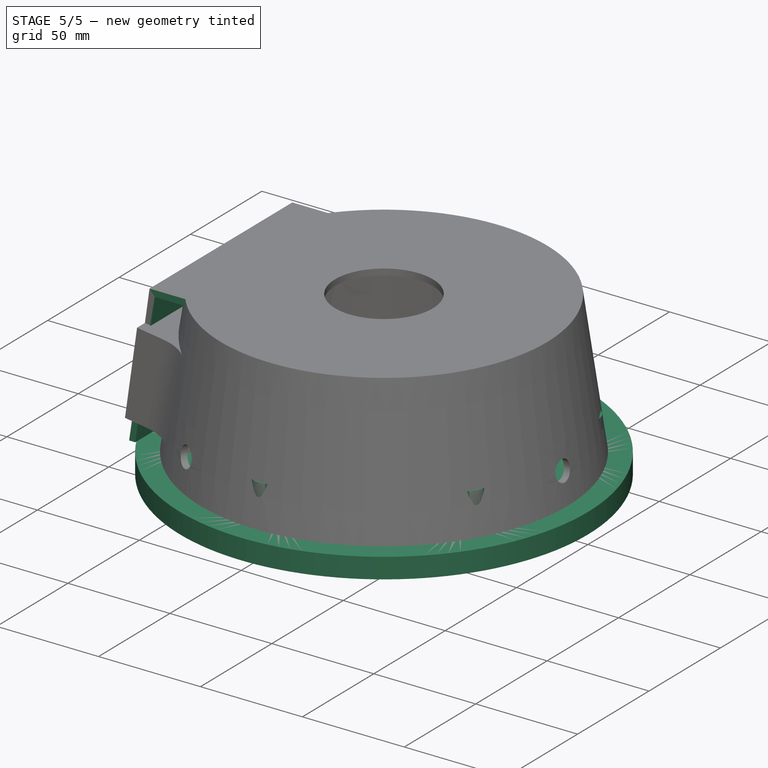
[diagram: stage 5 of 5 — iso view after this stage's code; geometry added in this stage tinted green]
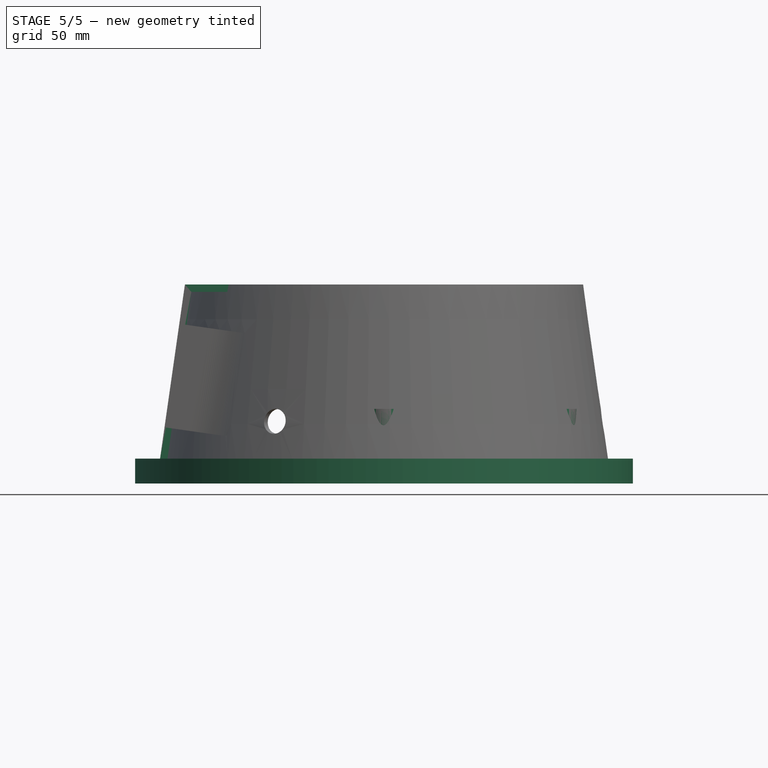
[diagram: stage 5 of 5 — front view after this stage's code; geometry added in this stage tinted green]
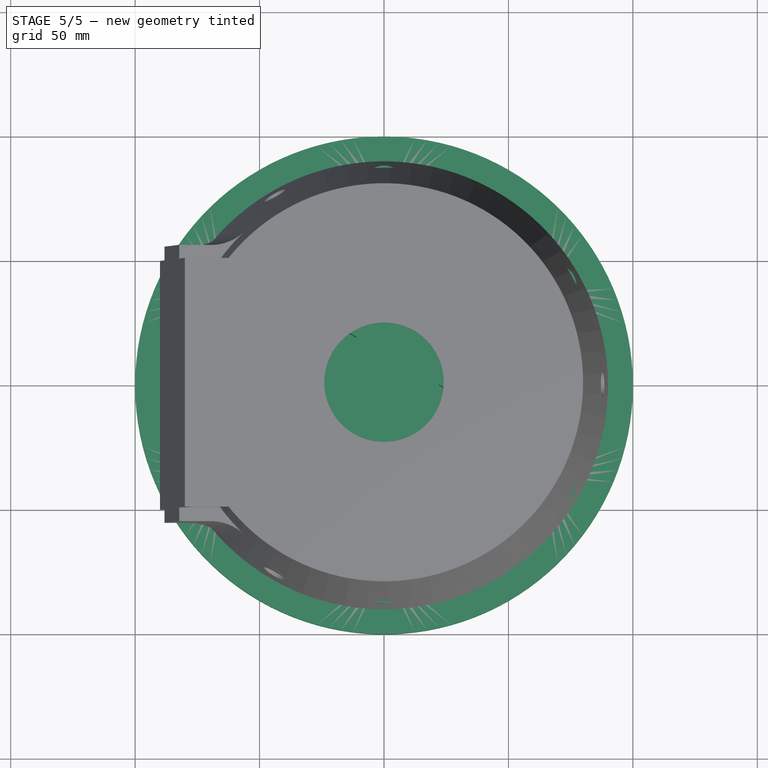
[diagram: stage 5 of 5 — top view after this stage's code; geometry added in this stage tinted green]
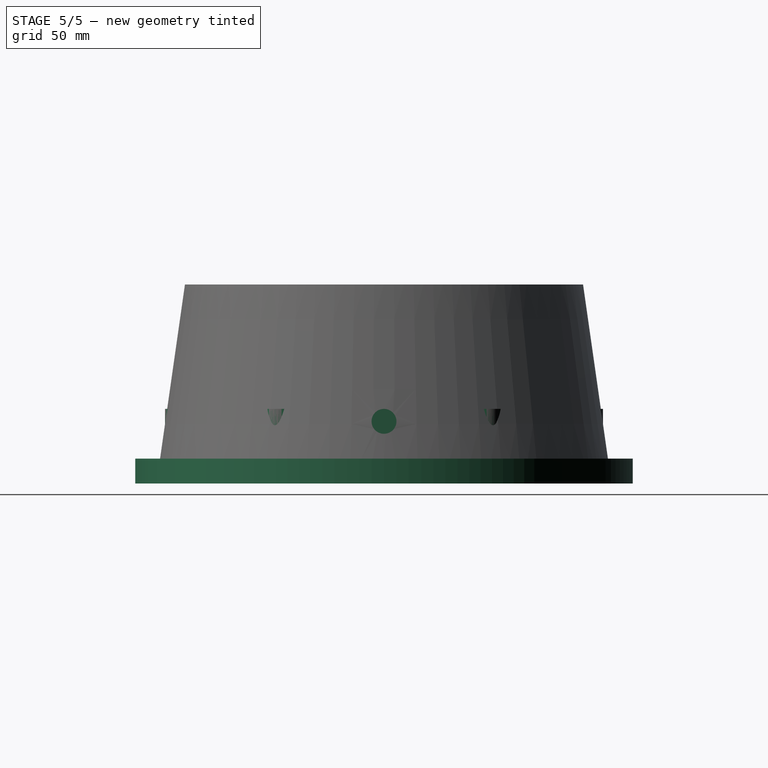
[diagram: stage 5 of 5 — right view after this stage's code; geometry added in this stage tinted green]
FEATURE [Sketcher::SketchObject] Sketch007  label="Display_plane"
  Placement = pos=(0,0,0) rot=(1,0,0;1.5708rad)
  sketch-geometry (7):
    g0: LineSegment StartX=-80 StartY=70 StartZ=0 EndX=-90 EndY=-9.176e-09 EndZ=0
    g1: LineSegment StartX=-90 StartY=-9.176e-09 StartZ=0 EndX=-87 EndY=9.588e-09 EndZ=0
    g2: LineSegment StartX=-87 StartY=9.588e-09 StartZ=0 EndX=-77.4286 EndY=67 EndZ=0
    g3: LineSegment StartX=-77.4286 StartY=67 StartZ=0 EndX=-24 EndY=67 EndZ=0
    g4: LineSegment StartX=-24 StartY=67 StartZ=0 EndX=-24 EndY=70 EndZ=0
    g5: LineSegment StartX=-80 StartY=70 StartZ=0 EndX=-80 EndY=70 EndZ=0
    g6: LineSegment StartX=-80 StartY=70 StartZ=0 EndX=-24 EndY=70 EndZ=0
  constraints (21):
    c: PointOnObject(g0,g-1)
    c: Coincident(g0,g1)
    c: PointOnObject(g1,g-1)
    c: Coincident(g1,g2)
    c: Coincident(g2,g3)
    c: Horizontal(g3)
    c: Coincident(g3,g4)
    c: DistanceX(g0,g-1) = 90
    c: DistanceX(g0,g-1) = 80
    c: DistanceX(g0,g1) = 3
    c: Parallel(g0,g2)
    c: DistanceY(g2,g0) = 3
    c: Vertical(g4)
    c: DistanceX(g3,g-1) = 24
    c: Vertical(g5)
    c: Coincident(g5,g6)
    c: Horizontal(g6)
    c: Coincident(g6,g4)
    c: Equal(g1,g4)
    c: DistanceY(g-1,g4) = 70
    c: Coincident(g5,g0)
FEATURE [PartDesign::Pad] Pad
  Length = 100
  Length2 = 100
  Midplane = true
  Placement = pos=(0,0,0) rot=(1,0,0;1.5708rad)
  Sketch = -> Sketch007
  Type = 0
FEATURE [Sketcher::SketchObject] Sketch022  label="power_jack_aid_01"
  Support = -> Pad004 [Face2]
  sketch-geometry (33):
    g0: LineSegment [constr] StartX=69.282 StartY=-40 StartZ=0 EndX=69.282 EndY=40 EndZ=0
    g1: LineSegment [constr] StartX=69.282 StartY=40 StartZ=0 EndX=0 EndY=80 EndZ=0
    g2: LineSegment [constr] StartX=0 StartY=80 StartZ=0 EndX=-69.282 EndY=40 EndZ=0
    g3: LineSegment [constr] StartX=-69.282 StartY=40 StartZ=0 EndX=-69.282 EndY=-40 EndZ=0
    g4: LineSegment [constr] StartX=-69.282 StartY=-40 StartZ=0 EndX=0 EndY=-80 EndZ=0
    g5: LineSegment [constr] StartX=0 StartY=-80 StartZ=0 EndX=69.282 EndY=-40 EndZ=0
    g6: Circle [constr] CenterX=0 CenterY=0 CenterZ=0 NormalX=0 NormalY=0 NormalZ=1 Radius=80
    g7: Circle CenterX=-69.282 CenterY=40 CenterZ=0 NormalX=0 NormalY=0 NormalZ=1 Radius=1.6
    g8: Circle CenterX=-69.282 CenterY=40 CenterZ=0 NormalX=0 NormalY=0 NormalZ=1 Radius=8
    g9: Circle CenterX=0 CenterY=80 CenterZ=0 NormalX=0 NormalY=0 NormalZ=1 Radius=1.6
    g10: Circle CenterX=0 CenterY=80 CenterZ=0 NormalX=0 NormalY=0 NormalZ=1 Radius=8
    g11: Circle CenterX=69.282 CenterY=40 CenterZ=0 NormalX=0 NormalY=0 NormalZ=1 Radius=1.6
    g12: Circle CenterX=69.282 CenterY=40 CenterZ=0 NormalX=0 NormalY=0 NormalZ=1 Radius=8
    g13: Circle CenterX=69.282 CenterY=-40 CenterZ=0 NormalX=0 NormalY=0 NormalZ=1 Radius=1.6
    g14: Circle CenterX=69.282 CenterY=-40 CenterZ=0 NormalX=0 NormalY=0 NormalZ=1 Radius=8
    g15: Circle CenterX=0 CenterY=-80 CenterZ=0 NormalX=0 NormalY=0 NormalZ=1 Radius=1.6
    g16: Circle CenterX=0 CenterY=-80 CenterZ=0 NormalX=0 NormalY=0 NormalZ=1 Radius=8
    g17: Circle CenterX=-69.282 CenterY=-40 CenterZ=0 NormalX=0 NormalY=0 NormalZ=1 Radius=1.6
    g18: Circle CenterX=-69.282 CenterY=-40 CenterZ=0 NormalX=0 NormalY=0 NormalZ=1 Radius=8
    g19: LineSegment StartX=-11 StartY=-19.0526 StartZ=0 EndX=-38 EndY=-34.641 EndZ=0
    g20: LineSegment StartX=-38 StartY=-34.641 StartZ=0 EndX=-11 EndY=-50.2295 EndZ=0
    g21: LineSegment StartX=-11 StartY=-50.2295 StartZ=0 EndX=-11 EndY=-19.0526 EndZ=0
    g22: Circle [constr] CenterX=-20 CenterY=-34.641 CenterZ=0 NormalX=0 NormalY=0 NormalZ=1 Radius=18
    g23: LineSegment [constr] StartX=0 StartY=0 StartZ=0 EndX=-34.641 EndY=-60 EndZ=0
    g24: LineSegment StartX=-11 StartY=50.2295 StartZ=0 EndX=-38 EndY=34.641 EndZ=0
    g25: LineSegment StartX=-38 StartY=34.641 StartZ=0 EndX=-11 EndY=19.0526 EndZ=0
    g26: LineSegment StartX=-11 StartY=19.0526 StartZ=0 EndX=-11 EndY=50.2295 EndZ=0
    g27: Circle [constr] CenterX=-20 CenterY=34.641 CenterZ=0 NormalX=0 NormalY=0 NormalZ=1 Radius=18
    g28: LineSegment StartX=49 StartY=15.5885 StartZ=0 EndX=22 EndY=0 EndZ=0
    g29: LineSegment StartX=22 StartY=0 StartZ=0 EndX=49 EndY=-15.5885 EndZ=0
    g30: LineSegment StartX=49 StartY=-15.5885 StartZ=0 EndX=49 EndY=15.5885 EndZ=0
    g31: Circle [constr] CenterX=40 CenterY=0 CenterZ=0 NormalX=0 NormalY=0 NormalZ=1 Radius=18
    g32: LineSegment [constr] StartX=-34.641 StartY=60 StartZ=0 EndX=0 EndY=0 EndZ=0
  constraints (83):
    c: Coincident(g0,g1)
    c: Coincident(g1,g2)
    c: Coincident(g2,g3)
    c: Coincident(g3,g4)
    c: Coincident(g4,g5)
    c: Coincident(g5,g0)
    c: Equal(g0, g1-g5) x5
    c: PointOnObject(g0,g6)
    c: PointOnObject(g1,g6)
    c: PointOnObject(g2,g6)
    c: PointOnObject(g3,g6)
    c: PointOnObject(g4,g6)
    c: PointOnObject(g5,g6)
    c: PointOnObject(g6,g-1)
    c: Coincident(g6,g-1)
    c: PointOnObject(g1,g-2)
    c: Radius(g6) = 80
    c: Coincident(g7,g2)
    c: Coincident(g8,g2)
    c: Coincident(g9,g1)
    c: Coincident(g10,g1)
    c: Coincident(g11,g0)
    c: Coincident(g12,g0)
    c: Coincident(g13,g0)
    c: Coincident(g14,g0)
    c: Coincident(g15,g4)
    c: Coincident(g16,g4)
    c: Coincident(g17,g3)
    c: Coincident(g18,g3)
    c: Radius(g7) = 1.6
    c: Radius(g8) = 8
    c: Equal(g8,g10)
    c: Equal(g10,g12)
    c: Equal(g12,g14)
    c: Equal(g14,g16)
    c: Equal(g16,g18)
    c: Equal(g7,g9)
    c: Equal(g9,g11)
    c: Equal(g11,g13)
    c: Equal(g13,g15)
    c: Equal(g15,g17)
    c: Coincident(g19,g20)
    c: Coincident(g20,g21)
    c: Coincident(g21,g19)
    c: Equal(g19,g20)
    c: Equal(g19,g21)
    c: PointOnObject(g19,g22)
    c: PointOnObject(g20,g22)
    c: PointOnObject(g21,g22)
    c: Parallel(g4,g20)
    c: Coincident(g23,g-1)
    c: PointOnObject(g23,g4)
    c: PointOnObject(g22,g23)
    c: Radius(g22) = 18
    c: PointOnObject(g19,g23)
    c: Distance(g-1,g22) = 40
    c: Coincident(g24,g25)
    c: Coincident(g25,g26)
    c: Coincident(g26,g24)
    c: Equal(g24,g25)
    c: Equal(g24,g26)
    c: PointOnObject(g24,g27)
    c: PointOnObject(g25,g27)
    c: PointOnObject(g26,g27)
    c: Coincident(g28,g29)
    c: Coincident(g29,g30)
    c: Coincident(g30,g28)
    c: Equal(g28,g29)
    c: Equal(g28,g30)
    c: PointOnObject(g28,g31)
    c: PointOnObject(g29,g31)
    c: PointOnObject(g30,g31)
    c: PointOnObject(g31,g-1)
    c: Equal(g22,g27)
    c: Equal(g27,g31)
    c: Parallel(g2,g24)
    c: Parallel(g30,g0)
    c: Coincident(g32,g-1)
    c: PointOnObject(g32,g2)
    c: PointOnObject(g27,g32)
    c: PointOnObject(g25,g32)
    c: Distance(g-1,g27) = 40
    c: Distance(g-1,g31) = 40
FEATURE [PartDesign::Pad] Pad007  label="Power_Plug_Aid"
  Length = 20
  Length2 = 100
  Sketch = -> Sketch022
  Type = 0
FEATURE [Sketcher::SketchObject] Sketch025  label="Display_Standoffs"
  Placement = pos=(-87.2101,0,12.4586) rot=(0.602781,0.602781,0.52279;2.17817rad)
  Support = -> Cut001 [Face17]
  sketch-geometry (6):
    g0: LineSegment [constr] StartX=-64.75 StartY=21 StartZ=0 EndX=90.25 EndY=21 EndZ=0
    g1: LineSegment [constr] StartX=12.75 StartY=51 StartZ=0 EndX=12.75 EndY=-9 EndZ=0
    g2: Circle CenterX=-24.75 CenterY=36.5 CenterZ=0 NormalX=0 NormalY=0 NormalZ=1 Radius=3.6
    g3: Circle CenterX=50.25 CenterY=36.5 CenterZ=0 NormalX=0 NormalY=0 NormalZ=1 Radius=3.6
    g4: Circle CenterX=50.25 CenterY=5.5 CenterZ=0 NormalX=0 NormalY=0 NormalZ=1 Radius=3.6
    g5: Circle CenterX=-24.75 CenterY=5.5 CenterZ=0 NormalX=0 NormalY=0 NormalZ=1 Radius=3.6
  constraints (18):
    c: Horizontal(g0)
    c: Vertical(g1)
    c: Symmetric(g2,g5,g0)
    c: Symmetric(g2,g3,g1)
    c: Symmetric(g3,g4,g0)
    c: Symmetric(g4,g5,g1)
    c: DistanceY(g-1,g0) = 21
    c: DistanceX(g-1,g1) = 12.75
    c: DistanceX(g2,g3) = 75
    c: DistanceY(g4,g3) = 31
    c: Radius(g2) = 3.6
    c: Equal(g2,g3)
    c: Equal(g3,g4)
    c: Equal(g4,g5)
    c: Symmetric(g1,g1,g0)
    c: DistanceY(g1,g1) = 60
    c: Symmetric(g0,g0,g1)
    c: DistanceX(g0,g0) = 155
FEATURE [PartDesign::Pad] Pad009
  Length = 8
  Length2 = 100
  Sketch = -> Sketch025
  Type = 0
FEATURE [Sketcher::SketchObject] Sketch026  label="Display_Standoff_Holes"
  Placement = pos=(-79.2905,0,11.3272) rot=(0.602781,0.602781,0.52279;2.17817rad)
  Support = -> Pad009 [Face24]
  sketch-geometry (6):
    g0: LineSegment [constr] StartX=-64.75 StartY=21 StartZ=0 EndX=90.25 EndY=21 EndZ=0
    g1: LineSegment [constr] StartX=12.75 StartY=51 StartZ=0 EndX=12.75 EndY=-9 EndZ=0
    g2: Circle CenterX=-24.75 CenterY=36.5 CenterZ=0 NormalX=0 NormalY=0 NormalZ=1 Radius=2.25
    g3: Circle CenterX=50.25 CenterY=36.5 CenterZ=0 NormalX=0 NormalY=0 NormalZ=1 Radius=2.25
    g4: Circle CenterX=50.25 CenterY=5.5 CenterZ=0 NormalX=0 NormalY=0 NormalZ=1 Radius=2.25
    g5: Circle CenterX=-24.75 CenterY=5.5 CenterZ=0 NormalX=0 NormalY=0 NormalZ=1 Radius=2.25
  constraints (18):
    c: Horizontal(g0)
    c: Vertical(g1)
    c: Symmetric(g2,g5,g0)
    c: Symmetric(g2,g3,g1)
    c: Symmetric(g3,g4,g0)
    c: Symmetric(g4,g5,g1)
    c: DistanceY(g-1,g0) = 21
    c: DistanceX(g-1,g1) = 12.75
    c: DistanceX(g2,g3) = 75
    c: DistanceY(g4,g3) = 31
    c: Radius(g2) = 2.25
    c: Equal(g2,g3)
    c: Equal(g3,g4)
    c: Equal(g4,g5)
    c: Symmetric(g1,g1,g0)
    c: DistanceY(g1,g1) = 60
    c: Symmetric(g0,g0,g1)
    c: DistanceX(g0,g0) = 155
FEATURE [PartDesign::Pocket] Pocket007
  Length = 5
  Sketch = -> Sketch026
  Type = 0
FEATURE [Sketcher::SketchObject] Sketch027  label="Knob_recess_body"
  Placement = pos=(-87.2101,0,12.4586) rot=(0.602781,0.602781,0.52279;2.17817rad)
  Support = -> Pocket007 [Face21]
  sketch-geometry (2):
    g0: LineSegment [constr] StartX=-75 StartY=21 StartZ=0 EndX=75 EndY=21 EndZ=0
    g1: Circle CenterX=-37.5 CenterY=21 CenterZ=0 NormalX=0 NormalY=0 NormalZ=1 Radius=12
  constraints (7):
    c: Horizontal(g0)
    c: Symmetric(g0,g0,g-2)
    c: DistanceY(g-1,g0) = 21
    c: DistanceX(g0,g0) = 150
    c: PointOnObject(g1,g0)
    c: DistanceX(g1,g-1) = 37.5
    c: Radius(g1) = 12
FEATURE [PartDesign::Pad] Pad010
  Length = 8
  Length2 = 100
  Sketch = -> Sketch027
  Type = 0
FEATURE [Sketcher::SketchObject] Sketch028  label="Knob_recess"
  Placement = pos=(-88.2,0,12.6) rot=(0.548043,-0.548043,-0.631899;2.0145rad)
  Support = -> Pad010 [Face2]
  sketch-geometry (2):
    g0: LineSegment [constr] StartX=-75 StartY=21 StartZ=0 EndX=75 EndY=21 EndZ=0
    g1: Circle CenterX=37.5 CenterY=21 CenterZ=0 NormalX=0 NormalY=0 NormalZ=1 Radius=10
  constraints (7):
    c: Horizontal(g0)
    c: Symmetric(g0,g0,g-2)
    c: DistanceY(g-1,g0) = 21
    c: DistanceX(g0,g0) = 150
    c: PointOnObject(g1,g0)
    c: DistanceX(g1,g-1) = -37.5
    c: Radius(g1) = 10
FEATURE [PartDesign::Pocket] Pocket008
  Length = 8
  Sketch = -> Sketch028
  Type = 0
FEATURE [Sketcher::SketchObject] Sketch029  label="Encoder_Hole"
  Placement = pos=(-79.2905,0,11.3272) rot=(0.602781,0.602781,0.52279;2.17817rad)
  Support = -> Pocket008 [Face40]
  sketch-geometry (2):
    g0: LineSegment [constr] StartX=-75 StartY=21 StartZ=0 EndX=75 EndY=21 EndZ=0
    g1: Circle CenterX=-37.5 CenterY=21 CenterZ=0 NormalX=0 NormalY=0 NormalZ=1 Radius=3.5
  constraints (7):
    c: Horizontal(g0)
    c: Symmetric(g0,g0,g-2)
    c: DistanceY(g-1,g0) = 21
    c: DistanceX(g0,g0) = 150
    c: PointOnObject(g1,g0)
    c: DistanceX(g1,g-1) = 37.5
    c: Radius(g1) = 3.5
FEATURE [PartDesign::Pocket] Pocket009  label="Display_last_op"
  Length = 5
  Sketch = -> Sketch029
  Type = 1
FEATURE [Part::MultiFuse] Fusion001  label="Final_PreRefine"
  Shapes = -> [Cut004,Pocket009]
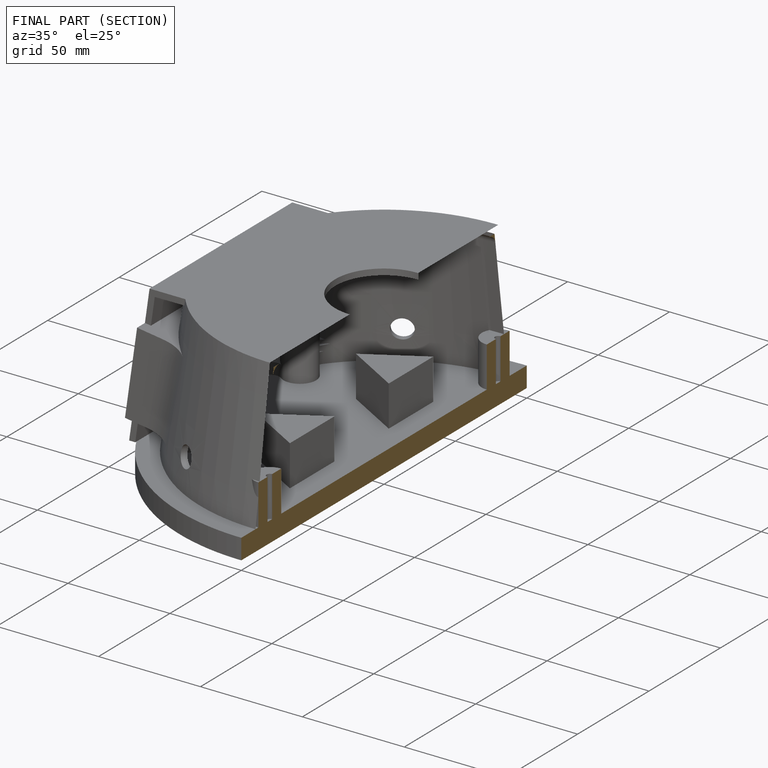
[diagram: finished part — half-section view (interior)]
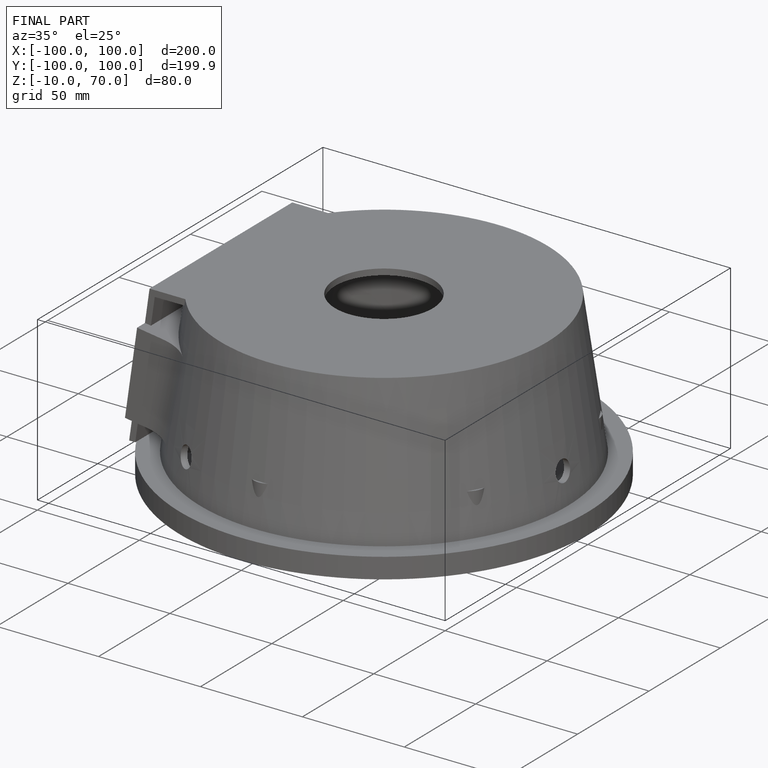
[diagram: finished part — iso view with bounding-box wireframe]
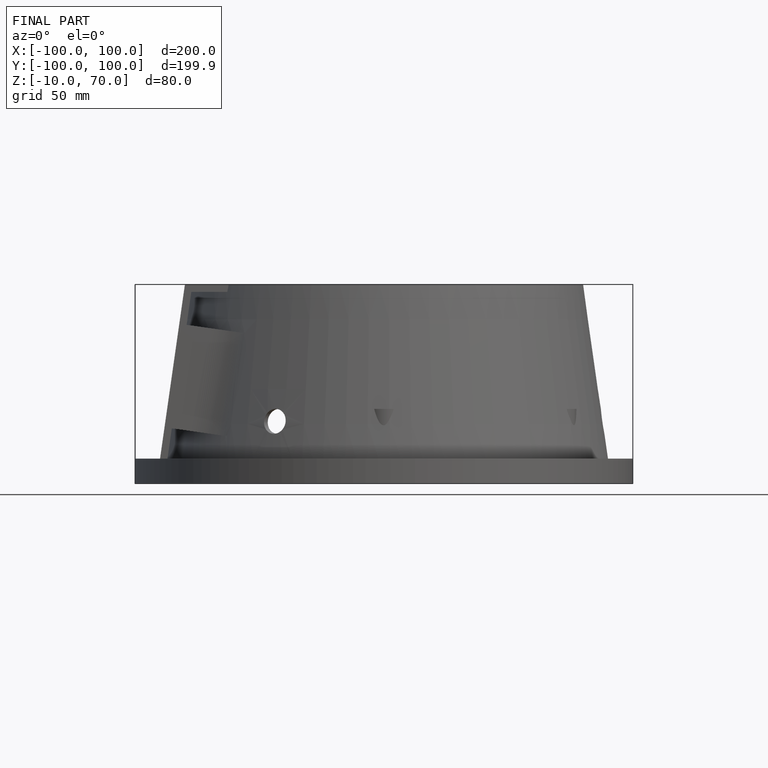
[diagram: finished part — front view with bounding-box wireframe]
